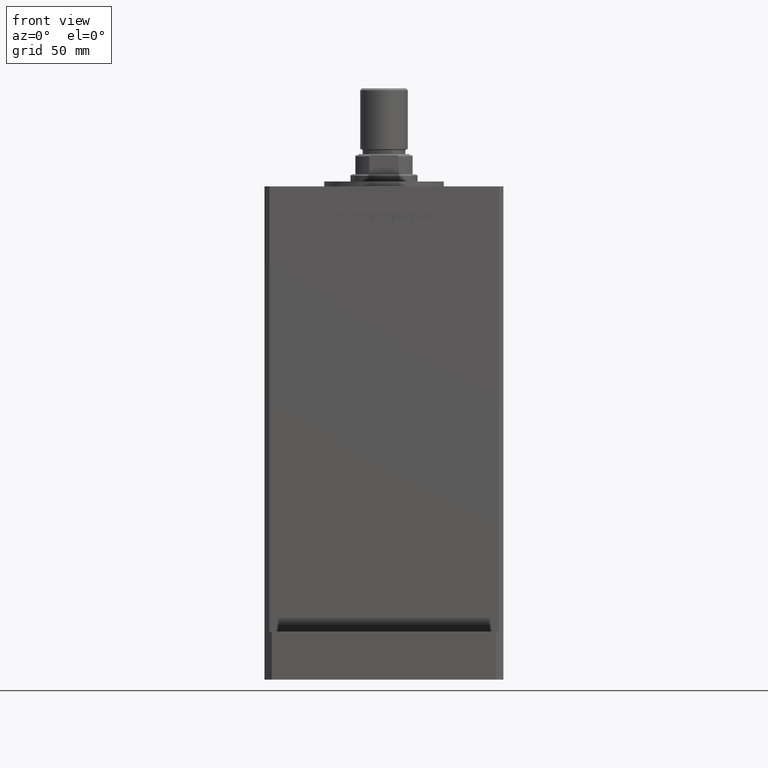
[diagram: clean part render]
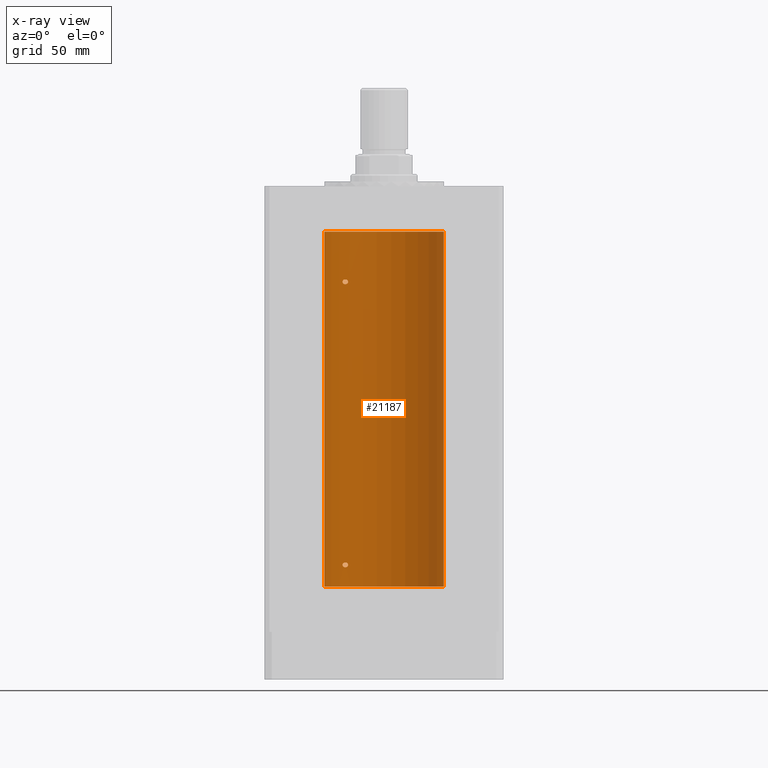
[diagram: x-ray — body ghosted, one internal face saturated and labeled with its STEP entity id]
A machine part, front view, then the same camera in x-ray: the body is ghosted and one INTERNAL B-rep face — a face not visible from any outside direction — is saturated and labeled: STEP entity #21187.
In plain terms, the highlighted cylindrical surface (partial cylindrical patch) has radius 25 mm, axis along (-0, -0, -1).
Its self-contained STEP definition (entity closure, byte-faithful):
#510 = CARTESIAN_POINT ( 'NONE',  ( -17.15234217094416636, 18.18812579706687771, 8.396573043775076073 ) ) ;
#784 = CARTESIAN_POINT ( 'NONE',  ( -16.46844752485334240, 18.81003400474346776, 8.011544319038943485 ) ) ;
#1058 = CARTESIAN_POINT ( 'NONE',  ( -17.05249165747629547, 18.28208333366428207, 8.292219220036512795 ) ) ;
#2152 = DIRECTION ( 'NONE',  ( -0.000000000000000000, -0.000000000000000000, -1.000000000000000000 ) ) ;
#2363 = EDGE_LOOP ( 'NONE', ( #2732, #50742 ) ) ;
#2594 = CARTESIAN_POINT ( 'NONE',  ( -17.34935157289747210, 18.00000000000001421, 9.170973690606336604 ) ) ;
#2732 = ORIENTED_EDGE ( 'NONE', *, *, #27684, .F. ) ;
#2866 = CARTESIAN_POINT ( 'NONE',  ( -15.00000000000018829, 20.00000000000001776, 9.084038803624167713 ) ) ;
#3750 = CARTESIAN_POINT ( 'NONE',  ( -15.58230678163760352, 19.55030131031897511, 128.3437394867029013 ) ) ;
#4015 = CARTESIAN_POINT ( 'NONE',  ( -16.99843849356149761, 18.33190197607053662, 128.2468335145756271 ) ) ;
#4029 = CARTESIAN_POINT ( 'NONE',  ( -15.70664578139657408, 19.45064696206087618, 126.6005795994920788 ) ) ;
#4287 = VERTEX_POINT ( 'NONE', #51757 ) ;
#4859 = VERTEX_POINT ( 'NONE', #30391 ) ;
#5496 = CIRCLE ( 'NONE', #8094, 25.00000000000000000 ) ;
#5587 = CARTESIAN_POINT ( 'NONE',  ( -16.34293146994562207, 18.91921593628401155, 126.4973425906726590 ) ) ;
#5905 = CARTESIAN_POINT ( 'NONE',  ( -17.34935157289746854, 18.00000000000000711, 127.5000000000000000 ) ) ;
#5943 = DIRECTION ( 'NONE',  ( -0.000000000000000000, 0.000000000000000000, 1.000000000000000000 ) ) ;
#5994 = FACE_BOUND ( 'NONE', #14601, .T. ) ;
#6699 = CARTESIAN_POINT ( 'NONE',  ( -15.06763582406798463, 19.94912143246364522, 9.325069938771754607 ) ) ;
#6971 = CARTESIAN_POINT ( 'NONE',  ( -17.30163983552689899, 18.04615713653367592, 9.336007472727789747 ) ) ;
#7197 = LINE ( 'NONE', #19780, #11610 ) ;
#8094 = AXIS2_PLACEMENT_3D ( 'NONE', #35285, #14451, #23745 ) ;
#8113 = CARTESIAN_POINT ( 'NONE',  ( -16.46913072925703858, 18.81168496547890712, 128.5057775588113884 ) ) ;
#8125 = CARTESIAN_POINT ( 'NONE',  ( -15.34666241858321989, 19.73581294411413722, 126.8121224605376085 ) ) ;
#8175 = CARTESIAN_POINT ( 'NONE',  ( -15.23538646979299038, 19.82157806413531631, 8.411999895282743722 ) ) ;
#8391 = CARTESIAN_POINT ( 'NONE',  ( -15.95808436639367400, 19.24489366819294034, 126.5242608788495176 ) ) ;
#8442 = CARTESIAN_POINT ( 'NONE',  ( -14.99999999999999112, 20.00000000000001066, 9.000000000000000000 ) ) ;
#9255 = CARTESIAN_POINT ( 'NONE',  ( -15.70664578139656342, 19.45064696206088684, 8.100579599492093053 ) ) ;
#9287 = FACE_OUTER_BOUND ( 'NONE', #47859, .T. ) ;
#9766 = EDGE_CURVE ( 'NONE', #15461, #4287, #5496, .T. ) ;
#10401 = EDGE_CURVE ( 'NONE', #37260, #4287, #7197, .T. ) ;
#10531 = CARTESIAN_POINT ( 'NONE',  ( -15.34624284195506583, 19.73614442075939479, 9.687618531851304837 ) ) ;
#10796 = CARTESIAN_POINT ( 'NONE',  ( -14.99999999999999112, 20.00000000000001066, 9.000000000000000000 ) ) ;
#10842 = CARTESIAN_POINT ( 'NONE',  ( 0.000000000000000000, 0.000000000000000000, 148.5000000000000000 ) ) ;
#11164 = LINE ( 'NONE', #28140, #41853 ) ;
#11610 = VECTOR ( 'NONE', #53205, 1000.000000000000000 ) ;
#11705 = B_SPLINE_CURVE_WITH_KNOTS ( 'NONE', 3,
 ( #13359, #45707, #38018, #510, #1058, #12554, #21035, #784, #37479, #17188, #33904, #9255, #13088, #25689, #8175, #45973, #29788, #29521, #54188, #8442 ),
 .UNSPECIFIED., .F., .F.,
 ( 4, 2, 2, 2, 2, 2, 2, 2, 2, 4 ),
 ( 0.000000000000000000, 0.0005040871078733219967, 0.001008174215746643993, 0.001512261323619965882, 0.002016348431493287987, 0.002520435539366610092, 0.003024522647239931764, 0.003528609755113253869, 0.003780653309049913837, 0.004032696862986573372 ),
 .UNSPECIFIED. ) ;
#11873 = CARTESIAN_POINT ( 'NONE',  ( -15.00000000000000000, 20.00000000000000000, 127.5000000000000000 ) ) ;
#11954 = CARTESIAN_POINT ( 'NONE',  ( -15.10490800566735814, 19.92096305044240268, 127.8962931740442173 ) ) ;
#12234 = CARTESIAN_POINT ( 'NONE',  ( -16.83415218046522099, 18.48332662461715614, 126.6343172662812435 ) ) ;
#12491 = CARTESIAN_POINT ( 'NONE',  ( -17.34935157289746854, 18.00000000000000711, 127.6709736906063739 ) ) ;
#12503 = CARTESIAN_POINT ( 'NONE',  ( -17.34935157289747565, 18.00000000000001421, 127.3289983604258282 ) ) ;
#12554 = CARTESIAN_POINT ( 'NONE',  ( -16.83415218046522455, 18.48332662461717391, 8.134317266281218650 ) ) ;
#13034 = CARTESIAN_POINT ( 'NONE',  ( -17.30269557861148400, 18.04515136187495727, 127.1660420817559185 ) ) ;
#13088 = CARTESIAN_POINT ( 'NONE',  ( -15.58164749401204219, 19.55082150006402841, 8.156678072685169312 ) ) ;
#13359 = CARTESIAN_POINT ( 'NONE',  ( -17.34935157289746854, 18.00000000000001066, 9.000000000000000000 ) ) ;
#13625 = B_SPLINE_CURVE_WITH_KNOTS ( 'NONE', 3,
 ( #10796, #2866, #14632, #6699, #18734, #31350, #10531, #36273, #15440, #15172, #31619, #36548, #23928, #27234, #53247, #35464, #52977, #6971, #2594, #23657 ),
 .UNSPECIFIED., .F., .F.,
 ( 4, 2, 2, 2, 2, 2, 2, 2, 2, 4 ),
 ( 0.004032696862986573372, 0.004284699222246939054, 0.004536701581507305604, 0.005040706300028038704, 0.005544711018548771804, 0.006048715737069505771, 0.007056725174110978910, 0.007308727533371345460, 0.007560729892631712010, 0.008064734611152450314 ),
 .UNSPECIFIED. ) ;
#13811 = CARTESIAN_POINT ( 'NONE',  ( -14.99999999999999112, 20.00000000000001066, 9.000000000000000000 ) ) ;
#14451 = DIRECTION ( 'NONE',  ( -0.000000000000000000, 0.000000000000000000, 1.000000000000000000 ) ) ;
#14463 = DIRECTION ( 'NONE',  ( -1.000000000000000000, 0.000000000000000000, 0.000000000000000000 ) ) ;
#14601 = EDGE_LOOP ( 'NONE', ( #47417, #30343 ) ) ;
#14632 = CARTESIAN_POINT ( 'NONE',  ( -15.01476641895661679, 19.98894406010708380, 9.168794563401341691 ) ) ;
#14822 = EDGE_CURVE ( 'NONE', #33432, #4859, #13625, .T. ) ;
#15141 = ORIENTED_EDGE ( 'NONE', *, *, #10401, .T. ) ;
#15172 = CARTESIAN_POINT ( 'NONE',  ( -15.95796937689561013, 19.24499537862566712, 9.975773099652194276 ) ) ;
#15440 = CARTESIAN_POINT ( 'NONE',  ( -15.70535969280553346, 19.45169171760802840, 9.898960772112497253 ) ) ;
#15461 = VERTEX_POINT ( 'NONE', #28455 ) ;
#17188 = CARTESIAN_POINT ( 'NONE',  ( -16.08757264251639896, 19.13682698743027544, 8.003442765848195251 ) ) ;
#18572 = CARTESIAN_POINT ( 'NONE',  ( 0.000000000000000000, 0.000000000000000000, 148.5000000000000000 ) ) ;
#18734 = CARTESIAN_POINT ( 'NONE',  ( -15.10490800566735814, 19.92096305044240978, 9.396293174044259899 ) ) ;
#19780 = CARTESIAN_POINT ( 'NONE',  ( -25.00000000000000000, 0.000000000000000000, 148.5000000000000000 ) ) ;
#20434 = CARTESIAN_POINT ( 'NONE',  ( -15.70535969280552990, 19.45169171760802485, 128.3989607721124742 ) ) ;
#20699 = CARTESIAN_POINT ( 'NONE',  ( -17.05007833789892757, 18.28384926940287869, 128.2013739990121906 ) ) ;
#21035 = CARTESIAN_POINT ( 'NONE',  ( -16.71492528194912808, 18.59135325782692760, 8.080141558342090136 ) ) ;
#21187 = ADVANCED_FACE ( 'NONE', ( #9287, #22412, #5994 ), #22677, .F. ) ;
#22412 = FACE_BOUND ( 'NONE', #2363, .T. ) ;
#22534 = CARTESIAN_POINT ( 'NONE',  ( -17.05249165747629903, 18.28208333366427496, 126.7922192200365288 ) ) ;
#22677 = CYLINDRICAL_SURFACE ( 'NONE', #53832, 25.00000000000000000 ) ;
#23657 = CARTESIAN_POINT ( 'NONE',  ( -17.34935157289746854, 18.00000000000001066, 9.000000000000000000 ) ) ;
#23745 = DIRECTION ( 'NONE',  ( 1.000000000000000000, 0.000000000000000000, 0.000000000000000000 ) ) ;
#23928 = CARTESIAN_POINT ( 'NONE',  ( -16.72476285461318568, 18.58415905903082788, 9.944944760795701555 ) ) ;
#24544 = CARTESIAN_POINT ( 'NONE',  ( -15.34624284195506050, 19.73614442075939834, 128.1876185318513137 ) ) ;
#24813 = CARTESIAN_POINT ( 'NONE',  ( -16.72476285461318923, 18.58415905903082788, 128.4449447607957495 ) ) ;
#25689 = CARTESIAN_POINT ( 'NONE',  ( -15.34666241858319680, 19.73581294411415143, 8.312122460537588964 ) ) ;
#26294 = AXIS2_PLACEMENT_3D ( 'NONE', #10842, #5943, #27546 ) ;
#26386 = CARTESIAN_POINT ( 'NONE',  ( -16.08757264251640251, 19.13682698743027188, 126.5034427658481775 ) ) ;
#27146 = CIRCLE ( 'NONE', #26294, 25.00000000000000000 ) ;
#27234 = CARTESIAN_POINT ( 'NONE',  ( -16.99843849356148695, 18.33190197607054372, 9.746833514575657276 ) ) ;
#27546 = DIRECTION ( 'NONE',  ( 1.000000000000000000, 0.000000000000000000, 0.000000000000000000 ) ) ;
#27592 = DIRECTION ( 'NONE',  ( -0.000000000000000000, -0.000000000000000000, -1.000000000000000000 ) ) ;
#27684 = EDGE_CURVE ( 'NONE', #4859, #33432, #11705, .T. ) ;
#28140 = CARTESIAN_POINT ( 'NONE',  ( 25.00000000000000000, 3.061616997868383043E-15, 148.5000000000000000 ) ) ;
#28455 = CARTESIAN_POINT ( 'NONE',  ( 25.00000000000000000, 3.061616997868383043E-15, 0.000000000000000000 ) ) ;
#28941 = CARTESIAN_POINT ( 'NONE',  ( -15.00000000000020250, 20.00000000000001421, 127.4159474586024317 ) ) ;
#29521 = CARTESIAN_POINT ( 'NONE',  ( -15.01482636753733502, 19.98889854010116096, 8.831202661007701238 ) ) ;
#29738 = CARTESIAN_POINT ( 'NONE',  ( -15.10490010356608259, 19.92096840819818482, 127.1037666713225036 ) ) ;
#29788 = CARTESIAN_POINT ( 'NONE',  ( -15.06722189748649399, 19.94943357555938590, 8.675980324878873162 ) ) ;
#30343 = ORIENTED_EDGE ( 'NONE', *, *, #41722, .F. ) ;
#30391 = CARTESIAN_POINT ( 'NONE',  ( -17.34935157289746854, 18.00000000000001066, 9.000000000000000000 ) ) ;
#30767 = CARTESIAN_POINT ( 'NONE',  ( -17.15234217094416280, 18.18812579706687416, 126.8965730437750778 ) ) ;
#30834 = EDGE_CURVE ( 'NONE', #34658, #39639, #33705, .T. ) ;
#31350 = CARTESIAN_POINT ( 'NONE',  ( -15.23594348686699895, 19.82115246225716376, 9.588721932685826843 ) ) ;
#31619 = CARTESIAN_POINT ( 'NONE',  ( -16.08745393861402917, 19.13692152169249994, 9.996501509986932987 ) ) ;
#32775 = CARTESIAN_POINT ( 'NONE',  ( -15.01476641895662745, 19.98894406010706959, 127.6687945634013062 ) ) ;
#33057 = CARTESIAN_POINT ( 'NONE',  ( -15.58164749401206528, 19.55082150006400354, 126.6566780726851533 ) ) ;
#33303 = CARTESIAN_POINT ( 'NONE',  ( -17.19010376497221060, 18.15221652163110377, 128.0356701235680248 ) ) ;
#33317 = CARTESIAN_POINT ( 'NONE',  ( -16.71492528194913518, 18.59135325782691694, 126.5801415583421061 ) ) ;
#33432 = VERTEX_POINT ( 'NONE', #13811 ) ;
#33705 = B_SPLINE_CURVE_WITH_KNOTS ( 'NONE', 3,
 ( #43359, #12503, #13034, #30767, #22534, #12234, #33317, #41809, #5587, #26386, #8391, #4029, #33057, #8125, #49780, #29738, #45657, #43097, #28941, #50052 ),
 .UNSPECIFIED., .F., .F.,
 ( 4, 2, 2, 2, 2, 2, 2, 2, 2, 4 ),
 ( 0.000000000000000000, 0.0005040871078733106126, 0.001008174215746621225, 0.001512261323619931838, 0.002016348431493242450, 0.002520435539366552846, 0.003024522647239863676, 0.003528609755113174505, 0.003780653309049860928, 0.004032696862986547351 ),
 .UNSPECIFIED. ) ;
#33904 = CARTESIAN_POINT ( 'NONE',  ( -15.95808436639366334, 19.24489366819295100, 8.024260878849517553 ) ) ;
#34658 = VERTEX_POINT ( 'NONE', #47935 ) ;
#35285 = CARTESIAN_POINT ( 'NONE',  ( 0.000000000000000000, 0.000000000000000000, 0.000000000000000000 ) ) ;
#35435 = ORIENTED_EDGE ( 'NONE', *, *, #9766, .F. ) ;
#35464 = CARTESIAN_POINT ( 'NONE',  ( -17.14593038898729560, 18.19399314418734548, 9.595944883196500186 ) ) ;
#36273 = CARTESIAN_POINT ( 'NONE',  ( -15.58230678163760530, 19.55030131031898577, 9.843739486702938635 ) ) ;
#36548 = CARTESIAN_POINT ( 'NONE',  ( -16.46913072925703148, 18.81168496547890712, 10.00577755881140618 ) ) ;
#37154 = CARTESIAN_POINT ( 'NONE',  ( -15.95796937689560657, 19.24499537862566001, 128.4757730996522014 ) ) ;
#37260 = VERTEX_POINT ( 'NONE', #42909 ) ;
#37419 = CARTESIAN_POINT ( 'NONE',  ( -17.14593038898728494, 18.19399314418736324, 128.0959448831965233 ) ) ;
#37479 = CARTESIAN_POINT ( 'NONE',  ( -16.34293146994560786, 18.91921593628401865, 7.997342590672627871 ) ) ;
#38018 = CARTESIAN_POINT ( 'NONE',  ( -17.30269557861148044, 18.04515136187495727, 8.666042081755902515 ) ) ;
#39639 = VERTEX_POINT ( 'NONE', #11873 ) ;
#40665 = B_SPLINE_CURVE_WITH_KNOTS ( 'NONE', 3,
 ( #45642, #53586, #32775, #41260, #11954, #41522, #24544, #3750, #20434, #37154, #53858, #8113, #24813, #4015, #20699, #37419, #33303, #50037, #12491, #5905 ),
 .UNSPECIFIED., .F., .F.,
 ( 4, 2, 2, 2, 2, 2, 2, 2, 2, 4 ),
 ( 0.004032696862986547351, 0.004284699222246883543, 0.004536701581507219735, 0.005040706300027958907, 0.005544711018548698946, 0.006048715737069438117, 0.007056725174110931205, 0.007308727533371293418, 0.007560729892631655631, 0.008064734611152384394 ),
 .UNSPECIFIED. ) ;
#41260 = CARTESIAN_POINT ( 'NONE',  ( -15.06763582406798285, 19.94912143246364877, 127.8250699387717191 ) ) ;
#41522 = CARTESIAN_POINT ( 'NONE',  ( -15.23594348686699007, 19.82115246225715310, 128.0887219326858428 ) ) ;
#41722 = EDGE_CURVE ( 'NONE', #39639, #34658, #40665, .T. ) ;
#41809 = CARTESIAN_POINT ( 'NONE',  ( -16.46844752485335661, 18.81003400474345710, 126.5115443190389328 ) ) ;
#41853 = VECTOR ( 'NONE', #27592, 1000.000000000000000 ) ;
#42909 = CARTESIAN_POINT ( 'NONE',  ( -25.00000000000000000, 0.000000000000000000, 148.5000000000000000 ) ) ;
#43097 = CARTESIAN_POINT ( 'NONE',  ( -15.01482636753733857, 19.98889854010115386, 127.3312026610077510 ) ) ;
#43359 = CARTESIAN_POINT ( 'NONE',  ( -17.34935157289746854, 18.00000000000000711, 127.5000000000000000 ) ) ;
#45256 = EDGE_CURVE ( 'NONE', #51671, #15461, #11164, .T. ) ;
#45642 = CARTESIAN_POINT ( 'NONE',  ( -15.00000000000000000, 20.00000000000000000, 127.5000000000000000 ) ) ;
#45657 = CARTESIAN_POINT ( 'NONE',  ( -15.06722189748649754, 19.94943357555938235, 127.1759803248788643 ) ) ;
#45707 = CARTESIAN_POINT ( 'NONE',  ( -17.34935157289747210, 18.00000000000001421, 8.828998360425805103 ) ) ;
#45973 = CARTESIAN_POINT ( 'NONE',  ( -15.10490010356606305, 19.92096840819820613, 8.603766671322505388 ) ) ;
#46974 = ORIENTED_EDGE ( 'NONE', *, *, #52318, .T. ) ;
#47417 = ORIENTED_EDGE ( 'NONE', *, *, #30834, .F. ) ;
#47859 = EDGE_LOOP ( 'NONE', ( #52784, #46974, #15141, #35435 ) ) ;
#47935 = CARTESIAN_POINT ( 'NONE',  ( -17.34935157289746854, 18.00000000000000711, 127.5000000000000000 ) ) ;
#48508 = CARTESIAN_POINT ( 'NONE',  ( 25.00000000000000000, 3.061616997868383043E-15, 148.5000000000000000 ) ) ;
#49780 = CARTESIAN_POINT ( 'NONE',  ( -15.23538646979301703, 19.82157806413529855, 126.9119998952827331 ) ) ;
#50037 = CARTESIAN_POINT ( 'NONE',  ( -17.30163983552689189, 18.04615713653366882, 127.8360074727278004 ) ) ;
#50052 = CARTESIAN_POINT ( 'NONE',  ( -15.00000000000000000, 20.00000000000000000, 127.5000000000000000 ) ) ;
#50742 = ORIENTED_EDGE ( 'NONE', *, *, #14822, .F. ) ;
#51671 = VERTEX_POINT ( 'NONE', #48508 ) ;
#51757 = CARTESIAN_POINT ( 'NONE',  ( -25.00000000000000000, 0.000000000000000000, 0.000000000000000000 ) ) ;
#52318 = EDGE_CURVE ( 'NONE', #51671, #37260, #27146, .T. ) ;
#52784 = ORIENTED_EDGE ( 'NONE', *, *, #45256, .F. ) ;
#52977 = CARTESIAN_POINT ( 'NONE',  ( -17.19010376497221060, 18.15221652163110377, 9.535670123568005252 ) ) ;
#53205 = DIRECTION ( 'NONE',  ( -0.000000000000000000, -0.000000000000000000, -1.000000000000000000 ) ) ;
#53247 = CARTESIAN_POINT ( 'NONE',  ( -17.05007833789893112, 18.28384926940286093, 9.701373999012139038 ) ) ;
#53586 = CARTESIAN_POINT ( 'NONE',  ( -15.00000000000020250, 20.00000000000001066, 127.5840388036241535 ) ) ;
#53832 = AXIS2_PLACEMENT_3D ( 'NONE', #18572, #2152, #14463 ) ;
#53858 = CARTESIAN_POINT ( 'NONE',  ( -16.08745393861403983, 19.13692152169250349, 128.4965015099869561 ) ) ;
#54188 = CARTESIAN_POINT ( 'NONE',  ( -15.00000000000018829, 20.00000000000002487, 8.915947458602436981 ) ) ;